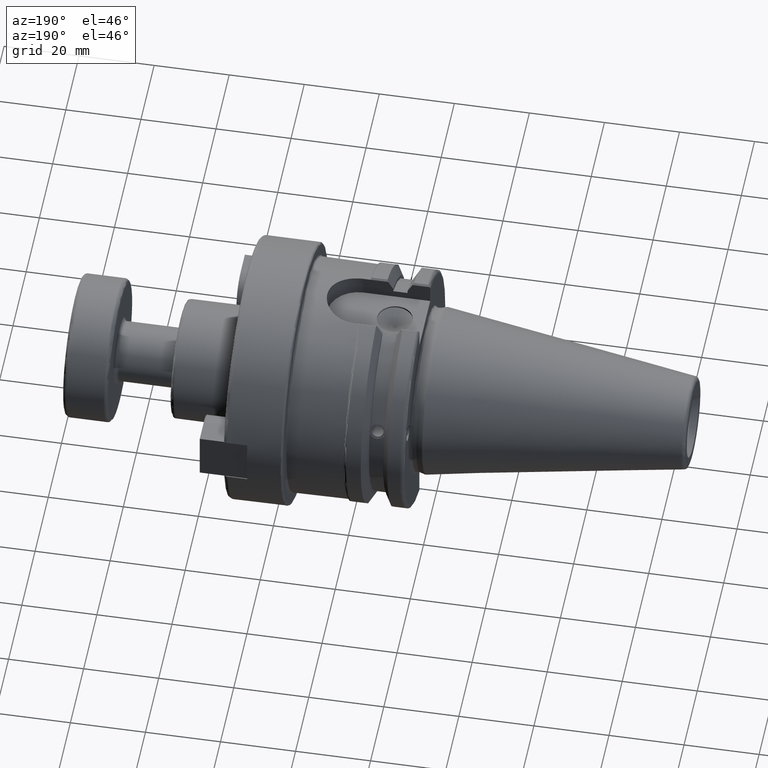
[diagram: clean part render]
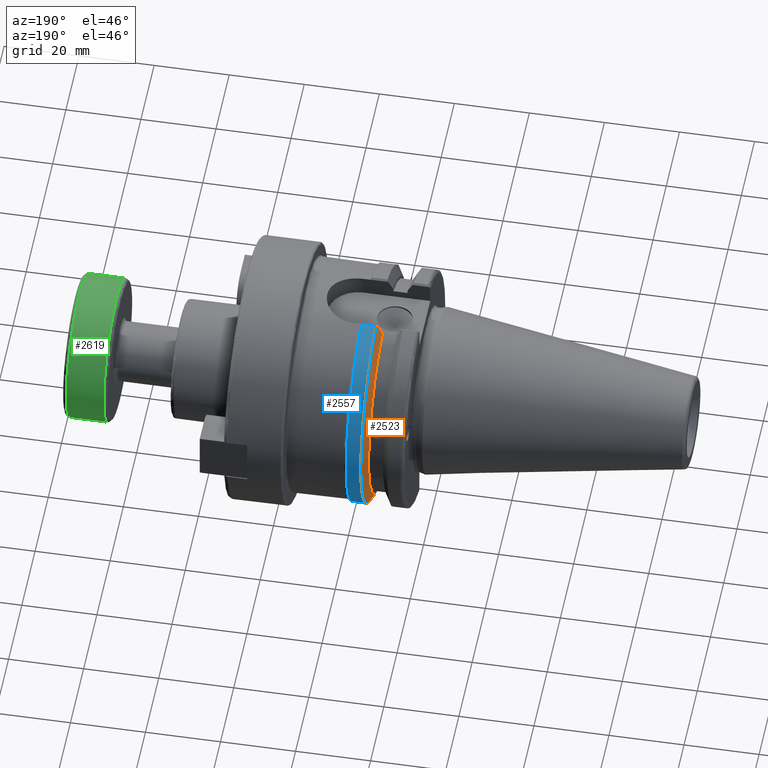
[diagram: same view with three faces highlighted in distinct colors, each labeled with its STEP entity id]
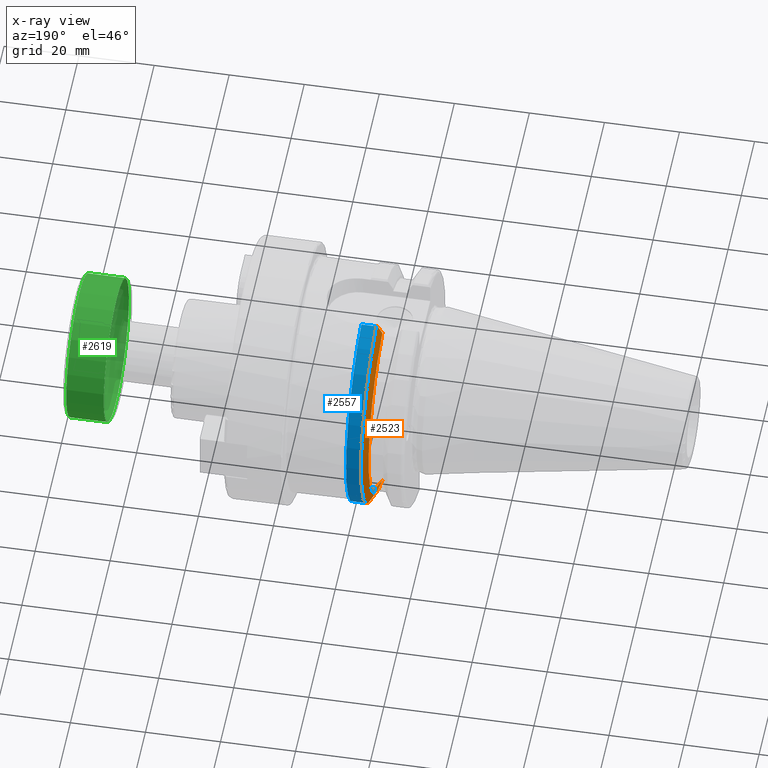
[diagram: x-ray of the same camera — body ghosted, the three highlighted faces saturated]
A machine part, auxiliary view with three faces highlighted in distinct colors.
The next image is the same camera in x-ray (body ghosted, the three faces saturated) — at least one of them is partly hidden behind the body in this view.
Their STEP definitions:

[orange] entity #2523 — the highlighted conical surface has half-angle 60 deg.
#57=(
BOUNDED_CURVE()
B_SPLINE_CURVE(2,(#4464,#4465,#4466),.UNSPECIFIED.,.F.,.F.)
B_SPLINE_CURVE_WITH_KNOTS((3,3),(0.,0.276549142795285),.UNSPECIFIED.)
CURVE()
GEOMETRIC_REPRESENTATION_ITEM()
RATIONAL_B_SPLINE_CURVE((1.,1.00095203903482,1.00031614444868))
REPRESENTATION_ITEM('')
);
#58=(
BOUNDED_CURVE()
B_SPLINE_CURVE(2,(#4468,#4469,#4470),.UNSPECIFIED.,.F.,.F.)
B_SPLINE_CURVE_WITH_KNOTS((3,3),(0.,0.0639048713675832),.UNSPECIFIED.)
CURVE()
GEOMETRIC_REPRESENTATION_ITEM()
RATIONAL_B_SPLINE_CURVE((1.,1.0002844421829,1.00047644010585))
REPRESENTATION_ITEM('')
);
#59=(
BOUNDED_CURVE()
B_SPLINE_CURVE(2,(#4474,#4475,#4476),.UNSPECIFIED.,.F.,.F.)
B_SPLINE_CURVE_WITH_KNOTS((3,3),(0.329353533631253,0.393258405001026),
 .UNSPECIFIED.)
CURVE()
GEOMETRIC_REPRESENTATION_ITEM()
RATIONAL_B_SPLINE_CURVE((1.00047644010593,1.00028444218295,1.))
REPRESENTATION_ITEM('')
);
#60=(
BOUNDED_CURVE()
B_SPLINE_CURVE(2,(#4478,#4479,#4480),.UNSPECIFIED.,.F.,.F.)
B_SPLINE_CURVE_WITH_KNOTS((3,3),(0.0550586467398919,0.331607789535851),
 .UNSPECIFIED.)
CURVE()
GEOMETRIC_REPRESENTATION_ITEM()
RATIONAL_B_SPLINE_CURVE((1.00031614444973,1.00095203903796,1.))
REPRESENTATION_ITEM('')
);
#161=CONICAL_SURFACE('',#2848,30.3546886482472,1.0471975511966);
#255=CIRCLE('',#2849,28.9593772964944);
#256=CIRCLE('',#2850,31.75);
#257=CIRCLE('',#2851,28.9593772964944);
#385=FACE_OUTER_BOUND('',#545,.T.);
#545=EDGE_LOOP('',(#1923,#1924,#1925,#1926,#1927,#1928,#1929,#1930,#1931));
#1003=B_SPLINE_CURVE_WITH_KNOTS('',3,(#4389,#4390,#4391,#4392,#4393,#4394,
#4395,#4396),.UNSPECIFIED.,.F.,.F.,(4,2,2,4),(0.451995700189026,0.464547828547662,
0.504528771685167,0.544509714822672),.UNSPECIFIED.);
#1007=B_SPLINE_CURVE_WITH_KNOTS('',3,(#4451,#4452,#4453,#4454,#4455,#4456,
#4457,#4458),.UNSPECIFIED.,.F.,.F.,(4,2,2,4),(0.544509714822672,0.584490657960178,
0.624471601097683,0.637023729456321),.UNSPECIFIED.);
#1129=VERTEX_POINT('',#4386);
#1130=VERTEX_POINT('',#4388);
#1137=VERTEX_POINT('',#4449);
#1138=VERTEX_POINT('',#4461);
#1139=VERTEX_POINT('',#4463);
#1140=VERTEX_POINT('',#4467);
#1141=VERTEX_POINT('',#4471);
#1142=VERTEX_POINT('',#4473);
#1143=VERTEX_POINT('',#4477);
#1423=EDGE_CURVE('',#1130,#1129,#1003,.T.);
#1431=EDGE_CURVE('',#1129,#1137,#1007,.T.);
#1432=EDGE_CURVE('',#1137,#1138,#255,.T.);
#1433=EDGE_CURVE('',#1138,#1139,#57,.T.);
#1434=EDGE_CURVE('',#1140,#1139,#58,.T.);
#1435=EDGE_CURVE('',#1141,#1140,#256,.T.);
#1436=EDGE_CURVE('',#1142,#1141,#59,.T.);
#1437=EDGE_CURVE('',#1142,#1143,#60,.T.);
#1438=EDGE_CURVE('',#1143,#1130,#257,.T.);
#1923=ORIENTED_EDGE('',*,*,#1423,.T.);
#1924=ORIENTED_EDGE('',*,*,#1431,.T.);
#1925=ORIENTED_EDGE('',*,*,#1432,.T.);
#1926=ORIENTED_EDGE('',*,*,#1433,.T.);
#1927=ORIENTED_EDGE('',*,*,#1434,.F.);
#1928=ORIENTED_EDGE('',*,*,#1435,.F.);
#1929=ORIENTED_EDGE('',*,*,#1436,.F.);
#1930=ORIENTED_EDGE('',*,*,#1437,.T.);
#1931=ORIENTED_EDGE('',*,*,#1438,.T.);
#2523=ADVANCED_FACE('',(#385),#161,.T.);
#2848=AXIS2_PLACEMENT_3D('',#4460,#3344,#3345);
#2849=AXIS2_PLACEMENT_3D('',#4462,#3346,#3347);
#2850=AXIS2_PLACEMENT_3D('',#4472,#3348,#3349);
#2851=AXIS2_PLACEMENT_3D('',#4481,#3350,#3351);
#3344=DIRECTION('center_axis',(1.,0.,0.));
#3345=DIRECTION('ref_axis',(0.,1.,0.));
#3346=DIRECTION('center_axis',(1.,0.,0.));
#3347=DIRECTION('ref_axis',(0.,0.,-1.));
#3348=DIRECTION('center_axis',(1.,0.,0.));
#3349=DIRECTION('ref_axis',(0.,0.,-1.));
#3350=DIRECTION('center_axis',(1.,0.,0.));
#3351=DIRECTION('ref_axis',(0.,0.,-1.));
#4386=CARTESIAN_POINT('',(13.2341,27.51401829017,10.0142836826778));
#4388=CARTESIAN_POINT('',(13.0491,27.4956274489925,9.09043478536247));
#4389=CARTESIAN_POINT('Ctrl Pts',(13.0491,27.4956274489925,9.09043478536247));
#4390=CARTESIAN_POINT('Ctrl Pts',(13.0632204071996,27.5087667900418,9.12860597076219));
#4391=CARTESIAN_POINT('Ctrl Pts',(13.0766929817857,27.5206055003513,9.16696618806878));
#4392=CARTESIAN_POINT('Ctrl Pts',(13.130081441159,27.5642934663232,9.32791534028656));
#4393=CARTESIAN_POINT('Ctrl Pts',(13.1682197084175,27.5867382255984,9.46717946402648));
#4394=CARTESIAN_POINT('Ctrl Pts',(13.2204106446058,27.5847569104122,9.74771639360672));
#4395=CARTESIAN_POINT('Ctrl Pts',(13.2341,27.559599249844,9.8890510252165));
#4396=CARTESIAN_POINT('Ctrl Pts',(13.2341,27.51401829017,10.0142836826778));
#4449=CARTESIAN_POINT('',(13.0491,26.9060914640648,10.7101715919071));
#4451=CARTESIAN_POINT('Ctrl Pts',(13.2341,27.51401829017,10.0142836826778));
#4452=CARTESIAN_POINT('Ctrl Pts',(13.2341,27.4684373304961,10.139516340139));
#4453=CARTESIAN_POINT('Ctrl Pts',(13.2204106446058,27.3968610665578,10.2639559818059));
#4454=CARTESIAN_POINT('Ctrl Pts',(13.1682197084175,27.2180531796526,10.4801333026531));
#4455=CARTESIAN_POINT('Ctrl Pts',(13.130081441159,27.1113422433189,10.5723885976054));
#4456=CARTESIAN_POINT('Ctrl Pts',(13.0766929817857,26.9744191989197,10.6676007180674));
#4457=CARTESIAN_POINT('Ctrl Pts',(13.0632204071996,26.9406927482839,10.6893765730703));
#4458=CARTESIAN_POINT('Ctrl Pts',(13.0491,26.9060914640648,10.7101715919071));
#4460=CARTESIAN_POINT('Origin',(13.8546833845378,0.,0.));
#4461=CARTESIAN_POINT('',(13.0491,8.19,27.7771386827498));
#4462=CARTESIAN_POINT('Origin',(13.0491,0.,0.));
#4463=CARTESIAN_POINT('',(14.3815146964874,8.19,30.1755016258903));
#4464=CARTESIAN_POINT('Ctrl Pts',(13.0491,8.19,27.7771386827498));
#4465=CARTESIAN_POINT('Ctrl Pts',(13.6877364384881,8.19,28.930368953992));
#4466=CARTESIAN_POINT('Ctrl Pts',(14.3815146964874,8.19,30.1755016258903));
#4467=CARTESIAN_POINT('',(14.6602667690756,8.67204822802685,30.5427254764662));
#4468=CARTESIAN_POINT('Ctrl Pts',(14.6602667690756,8.67204822802687,30.5427254764662));
#4469=CARTESIAN_POINT('Ctrl Pts',(14.5192085187837,8.42917748262644,30.357706789263));
#4470=CARTESIAN_POINT('Ctrl Pts',(14.3815146964874,8.19,30.1755016258903));
#4471=CARTESIAN_POINT('',(14.6602667690756,8.67204822802685,-30.5427254764662));
#4472=CARTESIAN_POINT('Origin',(14.6602667690756,0.,0.));
#4473=CARTESIAN_POINT('',(14.3815146964874,8.18999999999999,-30.1755016258903));
#4474=CARTESIAN_POINT('Ctrl Pts',(14.3815146964874,8.18999999999999,-30.1755016258903));
#4475=CARTESIAN_POINT('Ctrl Pts',(14.5192085187884,8.4291774826346,-30.3577067892692));
#4476=CARTESIAN_POINT('Ctrl Pts',(14.6602667690756,8.67204822802686,-30.5427254764662));
#4477=CARTESIAN_POINT('',(13.0491,8.19,-27.7771386827498));
#4478=CARTESIAN_POINT('Ctrl Pts',(14.3815146964874,8.18999999999999,-30.1755016258903));
#4479=CARTESIAN_POINT('Ctrl Pts',(13.6877364384816,8.18999999999999,-28.9303689539805));
#4480=CARTESIAN_POINT('Ctrl Pts',(13.0491,8.19,-27.7771386827498));
#4481=CARTESIAN_POINT('Origin',(13.0491,0.,0.));

[blue] entity #2557 — the highlighted cylindrical surface (partial cylindrical patch) has radius 31.75 mm, axis along (1, 0, 0).
#143=CYLINDRICAL_SURFACE('',#2912,31.75);
#256=CIRCLE('',#2850,31.75);
#273=CIRCLE('',#2884,31.75);
#419=FACE_OUTER_BOUND('',#584,.T.);
#584=EDGE_LOOP('',(#2115,#2116,#2117,#2118));
#755=LINE('',#4751,#916);
#756=LINE('',#4753,#917);
#916=VECTOR('',#3512,10.);
#917=VECTOR('',#3515,10.);
#1140=VERTEX_POINT('',#4467);
#1141=VERTEX_POINT('',#4471);
#1172=VERTEX_POINT('',#4593);
#1173=VERTEX_POINT('',#4604);
#1435=EDGE_CURVE('',#1141,#1140,#256,.T.);
#1482=EDGE_CURVE('',#1172,#1173,#273,.T.);
#1525=EDGE_CURVE('',#1141,#1172,#755,.T.);
#1526=EDGE_CURVE('',#1173,#1140,#756,.T.);
#2115=ORIENTED_EDGE('',*,*,#1482,.F.);
#2116=ORIENTED_EDGE('',*,*,#1525,.F.);
#2117=ORIENTED_EDGE('',*,*,#1435,.T.);
#2118=ORIENTED_EDGE('',*,*,#1526,.F.);
#2557=ADVANCED_FACE('',(#419),#143,.T.);
#2850=AXIS2_PLACEMENT_3D('',#4472,#3348,#3349);
#2884=AXIS2_PLACEMENT_3D('',#4605,#3438,#3439);
#2912=AXIS2_PLACEMENT_3D('',#4752,#3513,#3514);
#3348=DIRECTION('center_axis',(1.,0.,0.));
#3349=DIRECTION('ref_axis',(0.,0.,-1.));
#3438=DIRECTION('center_axis',(1.,0.,0.));
#3439=DIRECTION('ref_axis',(0.,1.,-6.12323399573677E-17));
#3512=DIRECTION('',(1.,0.,0.));
#3513=DIRECTION('center_axis',(1.,0.,0.));
#3514=DIRECTION('ref_axis',(0.,1.,0.));
#3515=DIRECTION('',(-1.,0.,0.));
#4467=CARTESIAN_POINT('',(14.6602667690756,8.67204822802685,30.5427254764662));
#4471=CARTESIAN_POINT('',(14.6602667690756,8.67204822802685,-30.5427254764662));
#4472=CARTESIAN_POINT('Origin',(14.6602667690756,0.,0.));
#4593=CARTESIAN_POINT('',(18.55,8.67204822802685,-30.5427254764662));
#4604=CARTESIAN_POINT('',(18.55,8.67204822802685,30.5427254764662));
#4605=CARTESIAN_POINT('Origin',(18.55,0.,0.));
#4751=CARTESIAN_POINT('',(16.8551333845378,8.67204822802685,-30.5427254764662));
#4752=CARTESIAN_POINT('Origin',(16.8551333845378,0.,0.));
#4753=CARTESIAN_POINT('',(16.8551333845378,8.67204822802685,30.5427254764662));

[green] entity #2619 — the highlighted cylindrical surface (bore or boss wall) has radius 19.05 mm, axis along (-1, -0, -0).
#155=CYLINDRICAL_SURFACE('',#3024,19.05);
#329=CIRCLE('',#3022,19.05);
#330=CIRCLE('',#3023,19.05);
#331=CIRCLE('',#3025,19.05);
#332=CIRCLE('',#3026,19.05);
#481=FACE_OUTER_BOUND('',#654,.T.);
#654=EDGE_LOOP('',(#2386,#2387,#2388,#2389,#2390,#2391));
#818=LINE('',#5023,#979);
#979=VECTOR('',#3801,19.05);
#1265=VERTEX_POINT('',#5016);
#1266=VERTEX_POINT('',#5018);
#1267=VERTEX_POINT('',#5022);
#1268=VERTEX_POINT('',#5024);
#1641=EDGE_CURVE('',#1265,#1266,#329,.T.);
#1642=EDGE_CURVE('',#1266,#1265,#330,.T.);
#1643=EDGE_CURVE('',#1266,#1267,#818,.T.);
#1644=EDGE_CURVE('',#1268,#1267,#331,.T.);
#1645=EDGE_CURVE('',#1267,#1268,#332,.T.);
#2386=ORIENTED_EDGE('',*,*,#1642,.F.);
#2387=ORIENTED_EDGE('',*,*,#1643,.T.);
#2388=ORIENTED_EDGE('',*,*,#1644,.F.);
#2389=ORIENTED_EDGE('',*,*,#1645,.F.);
#2390=ORIENTED_EDGE('',*,*,#1643,.F.);
#2391=ORIENTED_EDGE('',*,*,#1641,.F.);
#2619=ADVANCED_FACE('',(#481),#155,.T.);
#3022=AXIS2_PLACEMENT_3D('',#5019,#3795,#3796);
#3023=AXIS2_PLACEMENT_3D('',#5020,#3797,#3798);
#3024=AXIS2_PLACEMENT_3D('',#5021,#3799,#3800);
#3025=AXIS2_PLACEMENT_3D('',#5025,#3802,#3803);
#3026=AXIS2_PLACEMENT_3D('',#5026,#3804,#3805);
#3795=DIRECTION('center_axis',(1.,0.,0.));
#3796=DIRECTION('ref_axis',(0.,-1.,1.83697019872103E-16));
#3797=DIRECTION('center_axis',(1.,0.,0.));
#3798=DIRECTION('ref_axis',(0.,-1.,1.83697019872103E-16));
#3799=DIRECTION('center_axis',(1.,0.,0.));
#3800=DIRECTION('ref_axis',(0.,1.,0.));
#3801=DIRECTION('',(-1.,0.,0.));
#3802=DIRECTION('center_axis',(-1.,0.,0.));
#3803=DIRECTION('ref_axis',(0.,-1.,1.83697019872103E-16));
#3804=DIRECTION('center_axis',(-1.,0.,0.));
#3805=DIRECTION('ref_axis',(0.,-1.,1.83697019872103E-16));
#5016=CARTESIAN_POINT('',(11.,-2.33295215237571E-15,19.05));
#5018=CARTESIAN_POINT('',(11.,-19.05,-2.33295215237571E-15));
#5019=CARTESIAN_POINT('Origin',(11.,0.,0.));
#5020=CARTESIAN_POINT('Origin',(11.,0.,0.));
#5021=CARTESIAN_POINT('Origin',(6.,0.,0.));
#5022=CARTESIAN_POINT('',(1.,-19.05,-2.33295215237571E-15));
#5023=CARTESIAN_POINT('',(6.,-19.05,-2.33295215237571E-15));
#5024=CARTESIAN_POINT('',(1.,-2.33295215237571E-15,19.05));
#5025=CARTESIAN_POINT('Origin',(1.,0.,0.));
#5026=CARTESIAN_POINT('Origin',(1.,0.,0.));